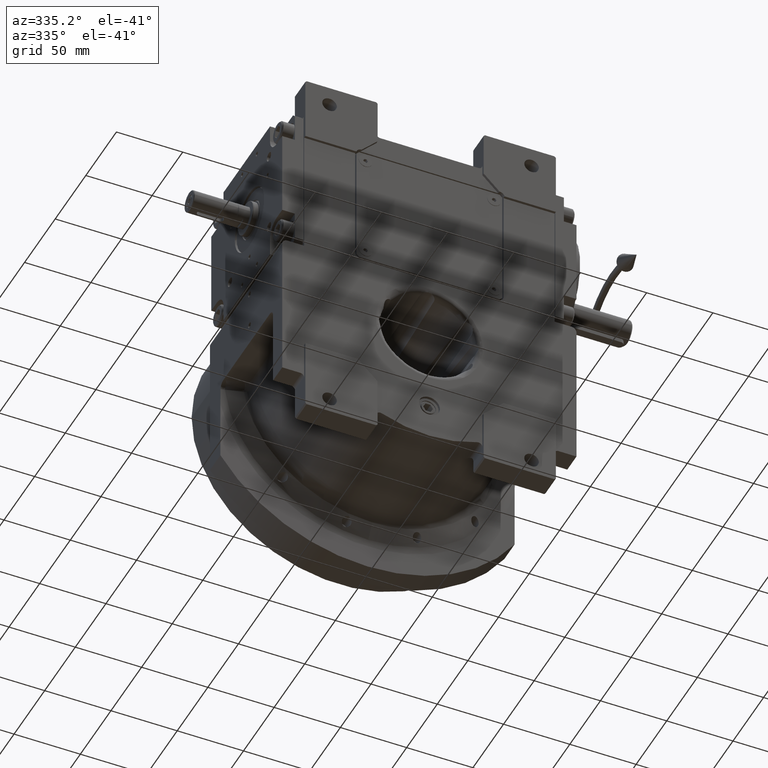
[diagram: clean part render]
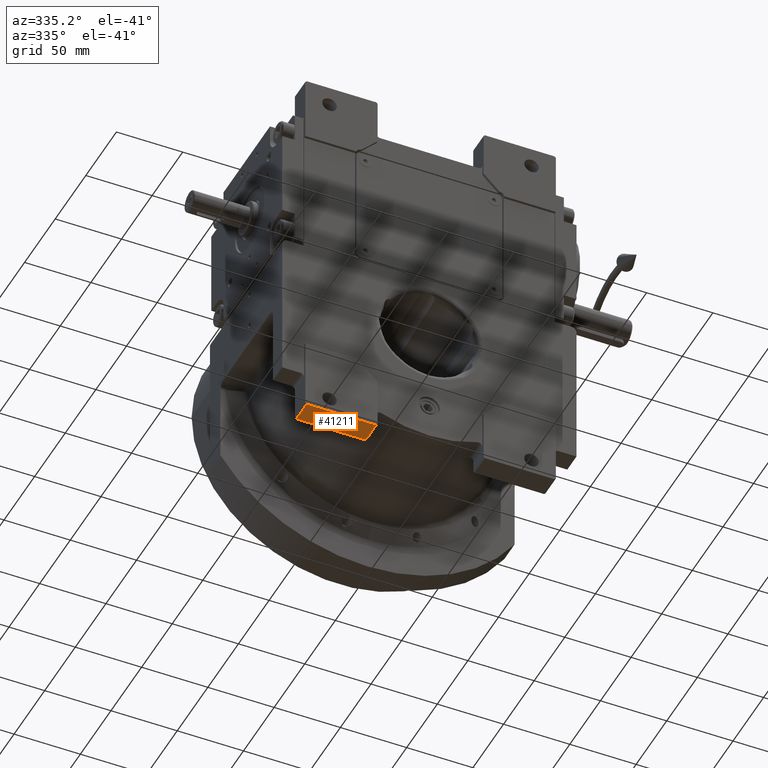
[diagram: same view with one face highlighted and labeled with its STEP entity id]
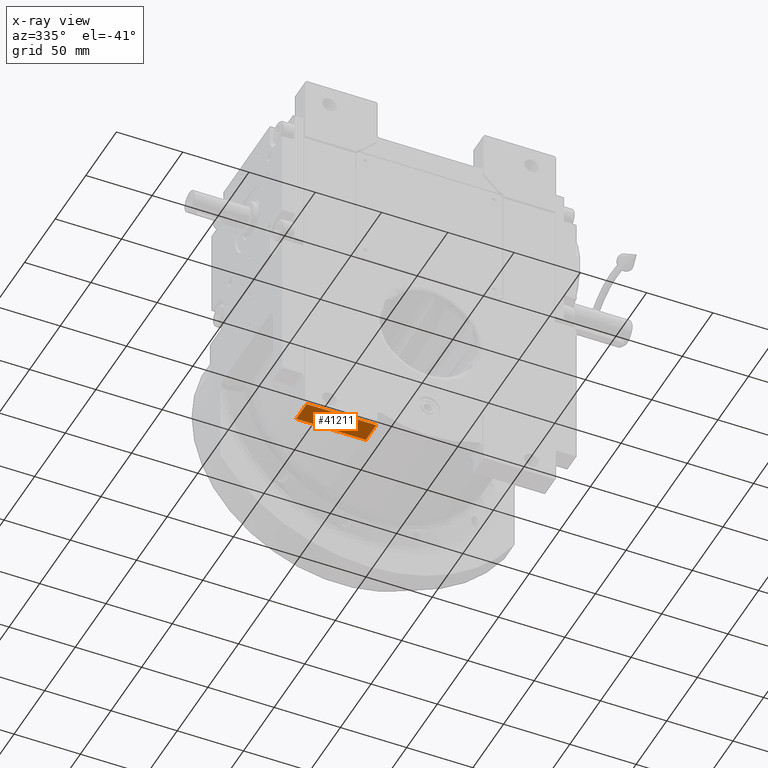
[diagram: x-ray of the same camera — body ghosted, the highlighted face saturated]
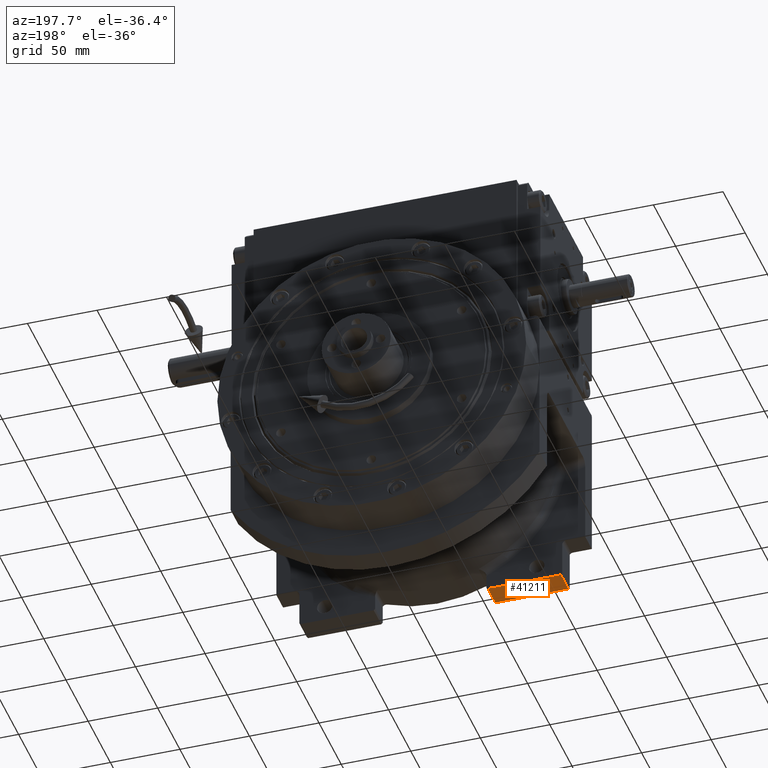
[diagram: same view with one face highlighted and labeled with its STEP entity id]
A machine part, auxiliary view. The second image highlights one B-rep face of the part: STEP entity #41211.
The next image is the same camera in x-ray: the body ghosted, the highlighted face saturated — about 0% of this face is hidden behind the body in this view.
A second angle (auxiliary view) of the same face is appended — the face is thin or edge-on in the first view.
In plain terms, the highlighted planar face has unit normal (0, 0, -1).
Its self-contained STEP definition (entity closure, byte-faithful):
#2532 = DIRECTION ( 'NONE',  ( 0.000000000000000000, 0.000000000000000000, -1.000000000000000000 ) ) ;
#5825 = LINE ( 'NONE', #49124, #17689 ) ;
#6399 = CARTESIAN_POINT ( 'NONE',  ( -41.00000000000000000, -38.50000000000000000, -100.0000000000000000 ) ) ;
#9678 = CARTESIAN_POINT ( 'NONE',  ( -93.50000000000000000, -55.50000000000000000, -100.0000000000000000 ) ) ;
#10382 = DIRECTION ( 'NONE',  ( 1.000000000000000000, 0.000000000000000000, 0.000000000000000000 ) ) ;
#11594 = CARTESIAN_POINT ( 'NONE',  ( -93.50000000000000000, -55.50000000000000000, -100.0000000000000000 ) ) ;
#12890 = FACE_OUTER_BOUND ( 'NONE', #24355, .T. ) ;
#12892 = DIRECTION ( 'NONE',  ( 0.000000000000000000, 1.000000000000000000, 0.000000000000000000 ) ) ;
#13695 = VERTEX_POINT ( 'NONE', #30415 ) ;
#14901 = LINE ( 'NONE', #68963, #44448 ) ;
#16316 = ORIENTED_EDGE ( 'NONE', *, *, #38126, .F. ) ;
#17689 = VECTOR ( 'NONE', #55547, 1000.000000000000000 ) ;
#17920 = PLANE ( 'NONE',  #25323 ) ;
#19921 = DIRECTION ( 'NONE',  ( 0.000000000000000000, 1.000000000000000000, 0.000000000000000000 ) ) ;
#20486 = VECTOR ( 'NONE', #12892, 1000.000000000000000 ) ;
#24355 = EDGE_LOOP ( 'NONE', ( #25000, #16316, #45424, #64422 ) ) ;
#25000 = ORIENTED_EDGE ( 'NONE', *, *, #68396, .T. ) ;
#25323 = AXIS2_PLACEMENT_3D ( 'NONE', #51563, #2532, #46546 ) ;
#29738 = LINE ( 'NONE', #41887, #20486 ) ;
#30217 = EDGE_CURVE ( 'NONE', #46561, #13695, #60143, .T. ) ;
#30415 = CARTESIAN_POINT ( 'NONE',  ( -41.00000000000000000, -55.50000000000000000, -100.0000000000000000 ) ) ;
#37060 = VERTEX_POINT ( 'NONE', #6399 ) ;
#38126 = EDGE_CURVE ( 'NONE', #13695, #37060, #29738, .T. ) ;
#41211 = ADVANCED_FACE ( 'NONE', ( #12890 ), #17920, .T. ) ;
#41887 = CARTESIAN_POINT ( 'NONE',  ( -41.00000000000000000, -55.50000000000000000, -100.0000000000000000 ) ) ;
#42161 = VECTOR ( 'NONE', #10382, 1000.000000000000000 ) ;
#44448 = VECTOR ( 'NONE', #19921, 1000.000000000000000 ) ;
#45424 = ORIENTED_EDGE ( 'NONE', *, *, #30217, .F. ) ;
#46546 = DIRECTION ( 'NONE',  ( 1.000000000000000000, 0.000000000000000000, 0.000000000000000000 ) ) ;
#46561 = VERTEX_POINT ( 'NONE', #11594 ) ;
#47025 = CARTESIAN_POINT ( 'NONE',  ( -93.50000000000000000, -38.50000000000000000, -100.0000000000000000 ) ) ;
#49124 = CARTESIAN_POINT ( 'NONE',  ( -93.50000000000000000, -38.50000000000000000, -100.0000000000000000 ) ) ;
#51563 = CARTESIAN_POINT ( 'NONE',  ( -94.50000000000000000, -38.50000000000000000, -100.0000000000000000 ) ) ;
#55547 = DIRECTION ( 'NONE',  ( 1.000000000000000000, 0.000000000000000000, 0.000000000000000000 ) ) ;
#56447 = VERTEX_POINT ( 'NONE', #47025 ) ;
#58379 = EDGE_CURVE ( 'NONE', #46561, #56447, #14901, .T. ) ;
#60143 = LINE ( 'NONE', #9678, #42161 ) ;
#64422 = ORIENTED_EDGE ( 'NONE', *, *, #58379, .T. ) ;
#68396 = EDGE_CURVE ( 'NONE', #56447, #37060, #5825, .T. ) ;
#68963 = CARTESIAN_POINT ( 'NONE',  ( -93.50000000000000000, -55.50000000000000000, -100.0000000000000000 ) ) ;